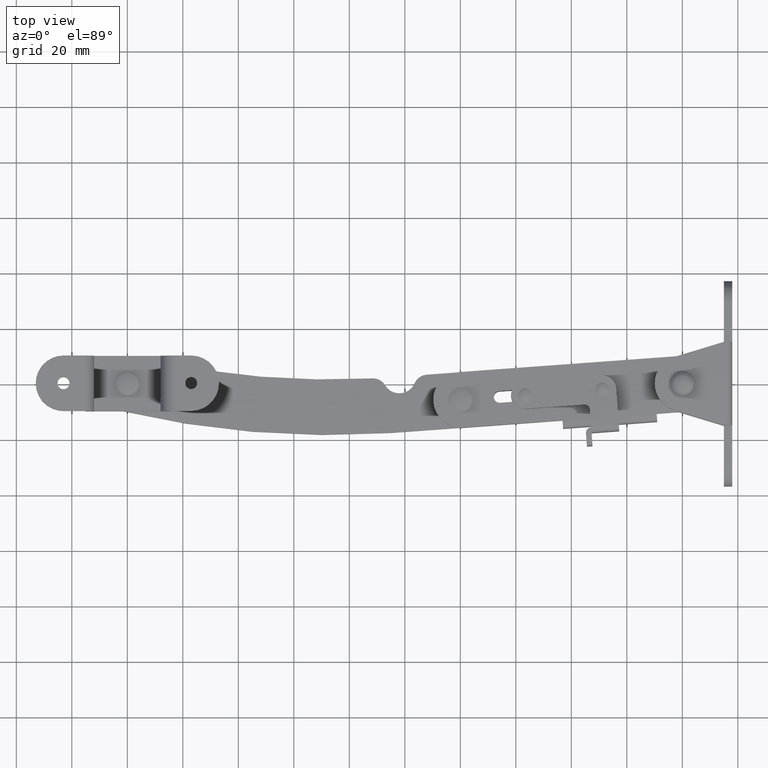
[diagram: clean part render]
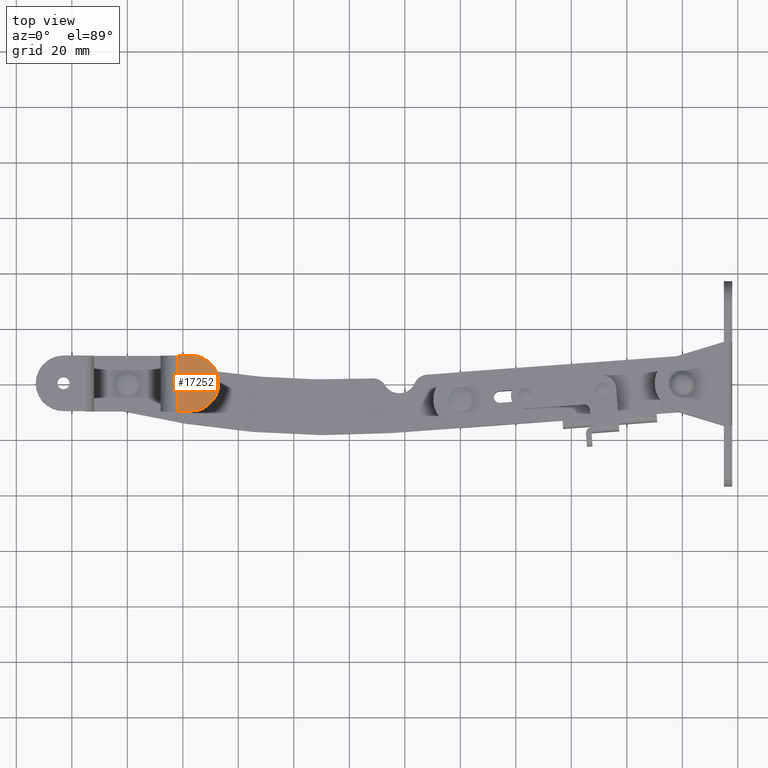
[diagram: same view with one face highlighted and labeled with its STEP entity id]
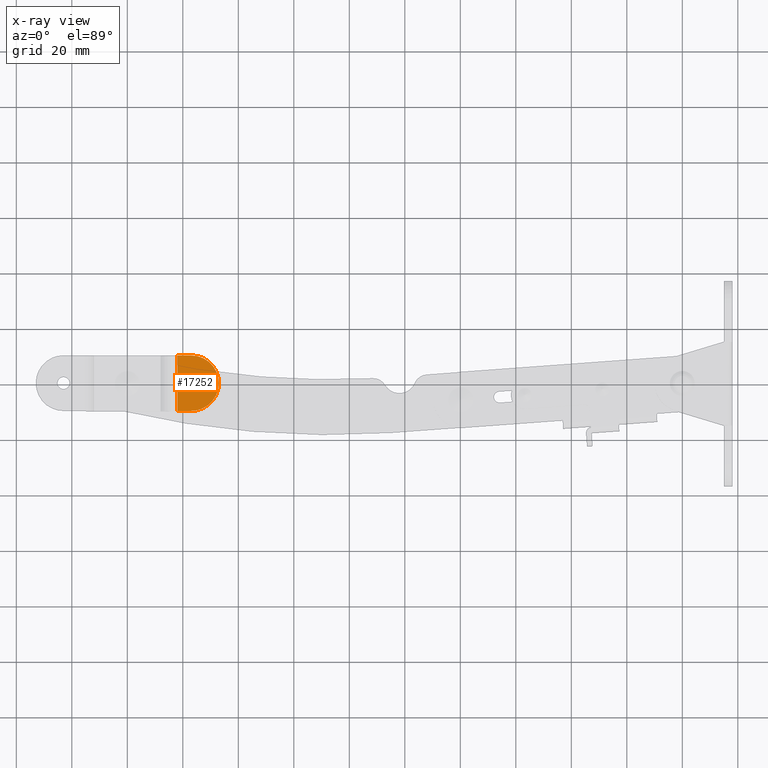
[diagram: x-ray of the same camera — body ghosted, the highlighted face saturated]
A machine part, top view. The second image highlights one B-rep face of the part: STEP entity #17252.
The next image is the same camera in x-ray: the body ghosted, the highlighted face saturated — about 0% of this face is hidden behind the body in this view.
In plain terms, the highlighted face is a freeform B-spline surface patch.
Its self-contained STEP definition (entity closure, byte-faithful):
#15787=CARTESIAN_POINT('',(-178.452502211369510,1.585189235650269,15.0));
#15788=VERTEX_POINT('',#15787);
#15794=CARTESIAN_POINT('',(-179.149981920198000,0.000042075273025,15.0));
#15795=VERTEX_POINT('',#15794);
#15796=CARTESIAN_POINT('',(-178.452502211369510,1.585189235650269,15.0));
#15797=CARTESIAN_POINT('',(-178.685594181223000,1.372265022967384,15.000000000000011));
#15798=CARTESIAN_POINT('',(-179.032848304089210,0.872483540634220,14.999999999999980));
#15799=CARTESIAN_POINT('',(-179.150241802418290,0.278596389329964,15.000000000000020));
#15800=CARTESIAN_POINT('',(-179.149981920198000,0.000042075273025,15.0));
#15801=B_SPLINE_CURVE_WITH_KNOTS('',3,(#15796,#15797,#15798,#15799,#15800),.UNSPECIFIED.,.F.,.U.,(4,1,4),(0.000000157395836,0.946896343596443,1.782467587252881),.UNSPECIFIED.);
#15802=EDGE_CURVE('',#15788,#15795,#15801,.T.);
#15804=CARTESIAN_POINT('',(-176.999975624659300,-2.149957924717757,15.0));
#15805=VERTEX_POINT('',#15804);
#15806=CARTESIAN_POINT('',(-179.149981920198000,0.000042075273025,15.0));
#15807=CARTESIAN_POINT('',(-179.150291023211310,-0.281453384823506,15.0));
#15808=CARTESIAN_POINT('',(-179.062327904020290,-0.720918630028062,15.000000000000011));
#15809=CARTESIAN_POINT('',(-178.755107403891000,-1.279076184010471,15.000000000000011));
#15810=CARTESIAN_POINT('',(-178.404759799627410,-1.656180981775107,15.0));
#15811=CARTESIAN_POINT('',(-177.826249808874110,-2.032706279930364,15.0));
#15812=CARTESIAN_POINT('',(-177.334328426358700,-2.150597861948058,15.0));
#15813=CARTESIAN_POINT('',(-176.999975624659300,-2.149957924717757,15.0));
#15814=B_SPLINE_CURVE_WITH_KNOTS('',3,(#15806,#15807,#15808,#15809,#15810,#15811,#15812,#15813),.UNSPECIFIED.,.F.,.U.,(4,1,1,1,1,4),(0.000000597696659,0.844325547904642,1.319263190931017,1.899671243938946,2.374648209559573,3.377300398789882),.UNSPECIFIED.);
#15815=EDGE_CURVE('',#15795,#15805,#15814,.T.);
#15817=CARTESIAN_POINT('',(-175.459181463644200,-1.499438065527790,15.0));
#15818=VERTEX_POINT('',#15817);
#15819=CARTESIAN_POINT('',(-176.999975624659300,-2.149957924717757,15.0));
#15820=CARTESIAN_POINT('',(-176.641898351201290,-2.150823863836994,15.000000000000020));
#15821=CARTESIAN_POINT('',(-176.070219267792600,-2.003447253179342,14.999999999999970));
#15822=CARTESIAN_POINT('',(-175.608894788427390,-1.653368091038204,15.000000000000011));
#15823=CARTESIAN_POINT('',(-175.459181463644200,-1.499438065527790,15.0));
#15824=B_SPLINE_CURVE_WITH_KNOTS('',3,(#15819,#15820,#15821,#15822,#15823),.UNSPECIFIED.,.F.,.U.,(4,1,4),(0.000000165105738,1.073646105177199,1.717863746017799),.UNSPECIFIED.);
#15825=EDGE_CURVE('',#15805,#15818,#15824,.T.);
#15864=CARTESIAN_POINT('',(-174.849981920197990,0.000042075273025,15.0));
#15865=VERTEX_POINT('',#15864);
#15866=CARTESIAN_POINT('',(-175.459181463644200,-1.499438065527790,15.0));
#15867=CARTESIAN_POINT('',(-175.314470327298410,-1.350831082717487,15.000000000000011));
#15868=CARTESIAN_POINT('',(-174.986489973755510,-0.898168129139842,15.0));
#15869=CARTESIAN_POINT('',(-174.849221224952000,-0.345835183164134,15.000000000000011));
#15870=CARTESIAN_POINT('',(-174.849981920197990,0.000042075273025,15.0));
#15871=B_SPLINE_CURVE_WITH_KNOTS('',3,(#15866,#15867,#15868,#15869,#15870),.UNSPECIFIED.,.F.,.U.,(4,1,4),(0.000000138791674,0.622302547860907,1.659428114611843),.UNSPECIFIED.);
#15872=EDGE_CURVE('',#15818,#15865,#15871,.T.);
#15874=CARTESIAN_POINT('',(-176.999988215736810,2.150042075263808,15.0));
#15875=VERTEX_POINT('',#15874);
#15876=CARTESIAN_POINT('',(-174.849981920197990,0.000042075273025,15.0));
#15877=CARTESIAN_POINT('',(-174.849681230589910,0.281532918778440,15.0));
#15878=CARTESIAN_POINT('',(-174.937615082061510,0.721016530953632,15.000000000000020));
#15879=CARTESIAN_POINT('',(-175.227849218269910,1.248094454472347,14.999999999999980));
#15880=CARTESIAN_POINT('',(-175.626245111291690,1.699126720031431,14.999999999999980));
#15881=CARTESIAN_POINT('',(-176.226029284599410,2.058515087361215,15.000000000000020));
#15882=CARTESIAN_POINT('',(-176.753736465759290,2.150179457214804,14.999999999999989));
#15883=CARTESIAN_POINT('',(-176.999988215736810,2.150042075263808,15.0));
#15884=B_SPLINE_CURVE_WITH_KNOTS('',3,(#15876,#15877,#15878,#15879,#15880,#15881,#15882,#15883),.UNSPECIFIED.,.F.,.U.,(4,1,1,1,1,4),(0.000000597686059,0.844325547898193,1.319263190927036,1.794148485670976,2.638522534264966,3.377300398789907),.UNSPECIFIED.);
#15885=EDGE_CURVE('',#15865,#15875,#15884,.T.);
#15887=CARTESIAN_POINT('',(-176.999988215736810,2.150042075263808,15.0));
#15888=CARTESIAN_POINT('',(-177.199323151277610,2.150065392193238,15.000000000000011));
#15889=CARTESIAN_POINT('',(-177.731005175938090,2.075745856686445,14.999999999999980));
#15890=CARTESIAN_POINT('',(-178.207832393648000,1.810147993694129,15.000000000000030));
#15891=CARTESIAN_POINT('',(-178.452502211369510,1.585189235650269,15.0));
#15892=B_SPLINE_CURVE_WITH_KNOTS('',3,(#15887,#15888,#15889,#15890,#15891),.UNSPECIFIED.,.F.,.U.,(4,1,4),(0.000000113972229,0.598074430710746,1.594824977359456),.UNSPECIFIED.);
#15893=EDGE_CURVE('',#15875,#15788,#15892,.T.);
#16543=CARTESIAN_POINT('',(-177.000000420187490,10.000007670518460,15.0));
#16544=VERTEX_POINT('',#16543);
#16550=CARTESIAN_POINT('',(-167.000000420197490,0.000021670518464,15.0));
#16551=VERTEX_POINT('',#16550);
#16552=CARTESIAN_POINT('',(-177.000000420187490,10.000007670518460,15.0));
#16553=CARTESIAN_POINT('',(-176.181855294897100,10.000240723816679,15.0));
#16554=CARTESIAN_POINT('',(-174.832081212210910,9.833345598375317,14.999999999999989));
#16555=CARTESIAN_POINT('',(-172.926652508537500,9.190918034727192,15.000000000000030));
#16556=CARTESIAN_POINT('',(-171.162105521816900,8.219875410083459,15.000000000000011));
#16557=CARTESIAN_POINT('',(-169.525681563208390,6.772937408357134,15.000000000000030));
#16558=CARTESIAN_POINT('',(-168.164045991984690,4.864482238975641,14.999999999999950));
#16559=CARTESIAN_POINT('',(-167.233469670976600,2.617897456354874,15.000000000000099));
#16560=CARTESIAN_POINT('',(-166.999724956925410,0.899973469000080,14.999999999999890));
#16561=CARTESIAN_POINT('',(-167.000000420197490,0.000021670518464,15.0));
#16562=B_SPLINE_CURVE_WITH_KNOTS('',3,(#16552,#16553,#16554,#16555,#16556,#16557,#16558,#16559,#16560,#16561),.UNSPECIFIED.,.F.,.U.,(4,1,1,1,1,1,1,4),(0.000000291814192,2.454369561013232,4.049733707235653,6.013283408912381,8.467591150216244,10.553816772117401,13.008264273963309,15.708053938087080),.UNSPECIFIED.);
#16563=EDGE_CURVE('',#16544,#16551,#16562,.T.);
#16603=CARTESIAN_POINT('',(-177.000000420197490,-9.999978329481541,15.0));
#16604=VERTEX_POINT('',#16603);
#16605=CARTESIAN_POINT('',(-167.000000420197490,0.000021670518464,15.0));
#16606=CARTESIAN_POINT('',(-166.999834784528500,-0.777197632598842,15.000000000000020));
#16607=CARTESIAN_POINT('',(-167.182136473026790,-2.331546776233206,14.999999999999989));
#16608=CARTESIAN_POINT('',(-167.986358832594110,-4.537079502072271,14.999999999999920));
#16609=CARTESIAN_POINT('',(-169.188042702822710,-6.359335255580464,15.000000000000140));
#16610=CARTESIAN_POINT('',(-170.766228864026290,-7.918328681402808,15.000000000000060));
#16611=CARTESIAN_POINT('',(-172.437555246437000,-8.976663127117774,14.999999999999771));
#16612=CARTESIAN_POINT('',(-174.586723477772410,-9.790539395971651,15.000000000000330));
#16613=CARTESIAN_POINT('',(-176.059115722893300,-10.000346710859420,14.999999999999851));
#16614=CARTESIAN_POINT('',(-177.000000420197490,-9.999978329481541,15.0));
#16615=B_SPLINE_CURVE_WITH_KNOTS('',3,(#16605,#16606,#16607,#16608,#16609,#16610,#16611,#16612,#16613,#16614),.UNSPECIFIED.,.F.,.U.,(4,1,1,1,1,1,1,4),(0.000000289330883,2.331625568481593,4.663333498677067,6.995067276183439,8.835772255358133,11.290165474150060,12.885528017272870,15.708061828772211),.UNSPECIFIED.);
#16616=EDGE_CURVE('',#16551,#16604,#16615,.T.);
#16718=CARTESIAN_POINT('',(-182.000000420197490,-9.999978329481541,15.0));
#16719=VERTEX_POINT('',#16718);
#16720=CARTESIAN_POINT('',(-177.000000420197490,-9.999978329481541,15.0));
#16721=CARTESIAN_POINT('',(-182.000000420197490,-9.999978329481541,15.0));
#16722=QUASI_UNIFORM_CURVE('',1,(#16720,#16721),.UNSPECIFIED.,.F.,.U.);
#16723=EDGE_CURVE('',#16604,#16719,#16722,.T.);
#16833=CARTESIAN_POINT('',(-182.000000420197490,10.000007670518420,15.0));
#16834=VERTEX_POINT('',#16833);
#16848=CARTESIAN_POINT('',(-177.000000420187490,10.000007670518460,15.0));
#16849=CARTESIAN_POINT('',(-182.000000420197490,10.000007670518420,15.0));
#16850=QUASI_UNIFORM_CURVE('',1,(#16848,#16849),.UNSPECIFIED.,.F.,.U.);
#16851=EDGE_CURVE('',#16544,#16834,#16850,.T.);
#17222=CARTESIAN_POINT('',(-182.000000420197490,10.000007670518420,15.0));
#17223=CARTESIAN_POINT('',(-182.000000420197490,-9.999978329481541,15.0));
#17224=QUASI_UNIFORM_CURVE('',1,(#17222,#17223),.UNSPECIFIED.,.F.,.U.);
#17225=EDGE_CURVE('',#16834,#16719,#17224,.T.);
#17232=CARTESIAN_POINT('',(-182.749249968696800,10.999006861000611,15.0));
#17233=CARTESIAN_POINT('',(-166.250750067035510,10.999006861000611,15.0));
#17234=CARTESIAN_POINT('',(-182.749249968696800,-10.998976625894651,15.0));
#17235=CARTESIAN_POINT('',(-166.250750067035510,-10.998976625894651,15.0));
#17236=B_SPLINE_SURFACE_WITH_KNOTS('',1,1,((#17232,#17234),(#17233,#17235)),.UNSPECIFIED.,.F.,.F.,.U.,(2,2),(2,2),(0.0,16.498499901661319),(0.0,21.997983486895262),.UNSPECIFIED.);
#17237=ORIENTED_EDGE('',*,*,#16851,.T.);
#17238=ORIENTED_EDGE('',*,*,#17225,.T.);
#17239=ORIENTED_EDGE('',*,*,#16723,.F.);
#17240=ORIENTED_EDGE('',*,*,#16616,.F.);
#17241=ORIENTED_EDGE('',*,*,#16563,.F.);
#17242=EDGE_LOOP('',(#17237,#17238,#17239,#17240,#17241));
#17243=FACE_OUTER_BOUND('',#17242,.T.);
#17244=ORIENTED_EDGE('',*,*,#15885,.F.);
#17245=ORIENTED_EDGE('',*,*,#15872,.F.);
#17246=ORIENTED_EDGE('',*,*,#15825,.F.);
#17247=ORIENTED_EDGE('',*,*,#15815,.F.);
#17248=ORIENTED_EDGE('',*,*,#15802,.F.);
#17249=ORIENTED_EDGE('',*,*,#15893,.F.);
#17250=EDGE_LOOP('',(#17244,#17245,#17246,#17247,#17248,#17249));
#17251=FACE_BOUND('',#17250,.T.);
#17252=ADVANCED_FACE('',(#17243,#17251),#17236,.F.);